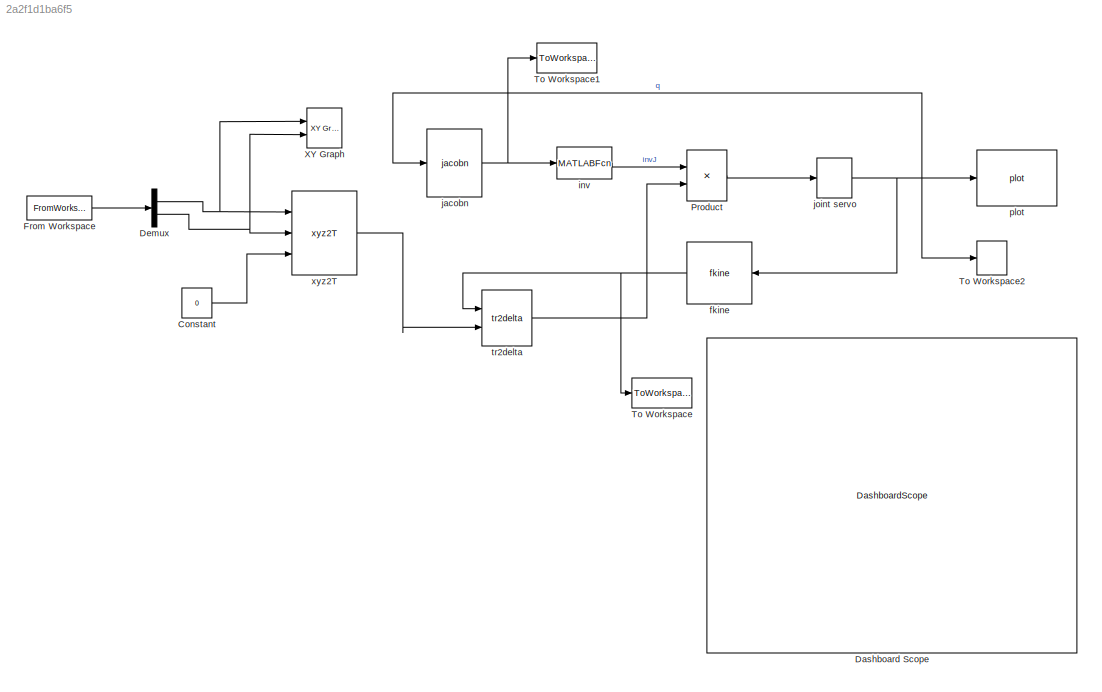
MODEL slx_2a2f1d1ba6f5
KIND model
CONFIG AbsTol = auto
CONFIG EnableMultiTasking = off
CONFIG FixedStep = auto
CONFIG MaxStep = auto
CONFIG MinStep = auto
CONFIG RelTol = 1e-3
CONFIG SampleTimeConstraint = Unconstrained
CONFIG SolverName = VariableStepAuto
CONFIG StartTime = 0.0
CONFIG StopTime = 16
BLOCK [Constant] Constant
  Value = 0
BLOCK [DashboardScope] Dashboard Scope
BLOCK [Demux] Demux
  Outputs = 2
  Ports = [1, 2]
BLOCK [FromWorkspace] From Workspace
  SampleTime = -1
  VariableName = data1
BLOCK [Product] Product
  InputSameDT = on
  Multiplication = Matrix(*)
  OutDataTypeStr = Inherit: Same as first input
  Ports = [2, 1]
  RndMeth = Zero
  SaturateOnIntegerOverflow = on
BLOCK [ToWorkspace] To Workspace
  MaxDataPoints = inf
  NameLocation = top
  Ports = [1]
  SampleTime = -1
  VariableName = T
BLOCK [ToWorkspace] To Workspace1
  MaxDataPoints = inf
  NameLocation = top
  Ports = [1]
  SampleTime = -1
  VariableName = J
BLOCK [ToWorkspace] To Workspace2
  MaxDataPoints = inf
  NameLocation = top
  Ports = [1]
  SampleTime = -1
  VariableName = q
BLOCK [Reference] XY Graph  REF=simulink/Sinks/XY Graph
  Ports = [2]
  SourceBlock = simulink/Sinks/XY Graph
  SourceProductBaseCode = SL
  SourceType = XY scope.
BLOCK [Reference] fkine  REF=roblocks/Arm/fkine  (lib defined in mdl_2a292b13c81b, mdl_69400f8cfe22, +12 more)
  Ports = [1, 1]
  SourceBlock = roblocks/Arm/fkine
BLOCK [MATLABFcn] inv
  MATLABFcn = inv
  Output1D = off
  Ports = [1, 1]
BLOCK [Reference] jacobn  REF=roblocks/Arm/jacobn  (lib defined in mdl_2a292b13c81b, mdl_69400f8cfe22, +12 more)
  Ports = [1, 1]
  SourceBlock = roblocks/Arm/jacobn
BLOCK [DiscreteIntegrator] joint servo
  ICPrevOutput = DiscIntNeverNeededParam
  ICPrevScaledInput = DiscIntNeverNeededParam
  InitialCondition = qn
  Ports = [1, 1]
  SampleTime = 0.05
  gainval = 5
BLOCK [Reference] plot  REF=roblocks/Arm/plot  (lib defined in mdl_2a292b13c81b, mdl_69400f8cfe22, +12 more)
  Ports = [1]
  SourceBlock = roblocks/Arm/plot
BLOCK [Reference] tr2delta  REF=roblocks/Toolbox/tr2delta  (lib defined in mdl_2a292b13c81b, mdl_69400f8cfe22, +12 more)
  Ports = [2, 1]
  SourceBlock = roblocks/Toolbox/tr2delta
BLOCK [Reference] xyz2T  REF=roblocks/Toolbox/xyz2T  (lib defined in mdl_2a292b13c81b, mdl_69400f8cfe22, +12 more)
  Ports = [3, 1]
  SourceBlock = roblocks/Toolbox/xyz2T
LINE Constant:1 -> xyz2T:3
NET Demux:1 -> XY Graph:1, xyz2T:1
NET Demux:2 -> XY Graph:2, xyz2T:2
LINE From Workspace:1 -> Demux:1
LINE Product:1 -> joint servo:1
NET fkine:1 -> To Workspace:1, tr2delta:1
LINE inv:1 -> Product:1
NET jacobn:1 -> To Workspace1:1, inv:1
NET joint servo:1 -> To Workspace2:1, fkine:1, jacobn:1, plot:1
LINE tr2delta:1 -> Product:2
LINE xyz2T:1 -> tr2delta:2
note: NET lines group one-source signal fan-out (src -> all destinations, sorted); 1:1 wires keep LINE
